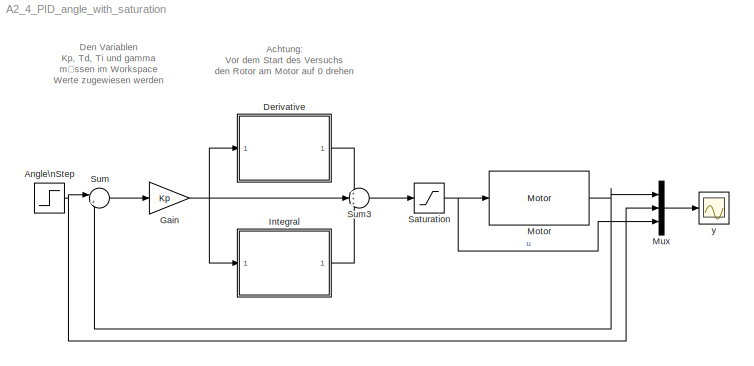
MODEL A2_4_PID_angle_with_saturation
KIND model
BLOCK [Step] Angle\nStep
  After = 2*pi
  SID = 313
  SampleTime = 0.01
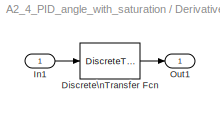
BLOCK [SubSystem] Derivative
  FunctionWithSeparateData = off
  MaskCallbackString = ||||hidecrit|
  MaskDescription = Continuous mask uses c2d to transform parameters onto the Discrete Transfer function block inside.
  MaskDisplay = dpoly(nums,dens)\ntext( 0.5, 1.0, method, 'verticalAlignment','top')
  MaskEnableString = on,on,on,on,on,on
  MaskHideContents = off
  MaskIconFrame = on
  MaskIconOpaque = on
  MaskIconRotate = port
  MaskIconUnits = normalized
  MaskInitialization = st=SampleTime;\nif length(st)>1\n    st=SampleTime(1);\nend\nif(st>0)\n    [numd,dend] = sldiscutil('disctransferfcn',{st,method,Wc,Numerator,Denominator});\nend	\ns = get_param(gcb,'maskvalues');\nnums = s{1};\ndens = s{2};\n%numc = eval(nums);\n%denc = eval(dens);\nsldiscutil('inittfmask', st);\nif(st==0)\nset_param([gcb '/Transfer Fcn'], 'AbsoluteTolerance', AbsTol);\nend
  MaskPortRotate = default
  MaskPromptString = Numerator (enter in s-domain:)|Denominator (enter in s-domain:)|Absolute tolerance:|Sample time:|Method:|Critical Frequency (Hz):
  MaskSelfModifiable = on
  MaskStyleString = edit,edit,edit,edit,popup(zoh|foh|tustin|prewarp|matched),edit
  MaskToolTipString = on,on,on,on,on,on
  MaskTunableValueString = on,on,on,on,on,on
  MaskType = DiscretizedTransferFcn
  MaskValueString = [Td 0]|[gamma*Td 1]|auto|0.01|tustin|1
  MaskVariables = Numerator=@1;Denominator=@2;AbsTol=&3;SampleTime=@4;method=&5;Wc=@6;
  MaskVisibilityString = on,on,on,on,on,off
  MinAlgLoopOccurrences = off
  Opaque = off
  Ports = [1, 1]
  PropExecContextOutsideSubsystem = off
  RTWSystemCode = Auto
  RequestExecContextInheritance = off
  SID = 66
BLOCK [DiscreteTransferFcn] Derivative/Discrete\nTransfer Fcn
  Denominator = dend
  Numerator = numd
  Ports = [1, 1]
  SID = 2
  SampleTime = SampleTime
BLOCK [Inport] Derivative/In1
  IconDisplay = Port number
  SID = 1
BLOCK [Outport] Derivative/Out1
  IconDisplay = Port number
  SID = 3
BLOCK [Gain] Gain
  Gain = Kp
  OutDataTypeMode = Inherit via internal rule
  OutDataTypeStr = Inherit: Inherit via internal rule
  ParamDataTypeStr = Inherit: Inherit via internal rule
  ParameterDataTypeMode = Inherit via internal rule
  SID = 76
  SaturateOnIntegerOverflow = off
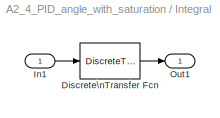
BLOCK [SubSystem] Integral
  FunctionWithSeparateData = off
  MaskCallbackString = ||||hidecrit|
  MaskDescription = Continuous mask uses c2d to transform parameters onto the Discrete Transfer function block inside.
  MaskDisplay = dpoly(nums,dens)\ntext( 0.5, 1.0, method, 'verticalAlignment','top')
  MaskEnableString = on,on,on,on,on,on
  MaskHideContents = off
  MaskIconFrame = on
  MaskIconOpaque = on
  MaskIconRotate = port
  MaskIconUnits = normalized
  MaskInitialization = st=SampleTime;\nif length(st)>1\n    st=SampleTime(1);\nend\nif(st>0)\n    [numd,dend] = sldiscutil('disctransferfcn',{st,method,Wc,Numerator,Denominator});\nend	\ns = get_param(gcb,'maskvalues');\nnums = s{1};\ndens = s{2};\n%numc = eval(nums);\n%denc = eval(dens);\nsldiscutil('inittfmask', st);\nif(st==0)\nset_param([gcb '/Transfer Fcn'], 'AbsoluteTolerance', AbsTol);\nend
  MaskPortRotate = default
  MaskPromptString = Numerator (enter in s-domain:)|Denominator (enter in s-domain:)|Absolute tolerance:|Sample time:|Method:|Critical Frequency (Hz):
  MaskSelfModifiable = on
  MaskStyleString = edit,edit,edit,edit,popup(zoh|foh|tustin|prewarp|matched),edit
  MaskToolTipString = on,on,on,on,on,on
  MaskTunableValueString = on,on,on,on,on,on
  MaskType = DiscretizedTransferFcn
  MaskValueString = [1]|[Ti 0]|auto|0.01|tustin|1
  MaskVariables = Numerator=@1;Denominator=@2;AbsTol=&3;SampleTime=@4;method=&5;Wc=@6;
  MaskVisibilityString = on,on,on,on,on,off
  MinAlgLoopOccurrences = off
  Opaque = off
  Ports = [1, 1]
  PropExecContextOutsideSubsystem = off
  RTWSystemCode = Auto
  RequestExecContextInheritance = off
  SID = 77
BLOCK [DiscreteTransferFcn] Integral/Discrete\nTransfer Fcn
  Denominator = dend
  Numerator = numd
  Ports = [1, 1]
  SID = 2
  SampleTime = SampleTime
BLOCK [Inport] Integral/In1
  IconDisplay = Port number
  SID = 1
BLOCK [Outport] Integral/Out1
  IconDisplay = Port number
  SID = 3
BLOCK [Reference] Motor  REF=DCmotor_library/Motor
  Ports = [1, 1]
  SID = 316
  SourceBlock = DCmotor_library/Motor
  motoridinput = 1
  name_signal = Angle
  ts = 10
BLOCK [Mux] Mux
  DisplayOption = bar
  Inputs = 3
  Ports = [3, 1]
  SID = 319
BLOCK [Saturate] Saturation
  LowerLimit = -7
  SID = 320
  UpperLimit = 7
BLOCK [Sum] Sum
  IconShape = round
  InputSameDT = off
  Inputs = |+-
  OutDataTypeMode = Inherit via internal rule
  OutDataTypeStr = Inherit: Inherit via internal rule
  Ports = [2, 1]
  SID = 86
  SaturateOnIntegerOverflow = off
BLOCK [Sum] Sum3
  IconShape = round
  InputSameDT = off
  Inputs = +++
  OutDataTypeMode = Inherit via internal rule
  OutDataTypeStr = Inherit: Inherit via internal rule
  Ports = [3, 1]
  SID = 88
  SaturateOnIntegerOverflow = off
BLOCK [Scope] y
  DataFormat = StructureWithTime
  Floating = off
  NumInputPorts = 1
  Ports = [1]
  SID = 314
  SampleTime = 0
  YMax = 13
  YMin = -3
ANNOTATION (root): Achtung:\nVor dem Start des Versuchs\nden Rotor am Motor auf 0 drehen
ANNOTATION (root): Den Variablen\nKp, Td, Ti und gamma\nmüssen im Workspace \nWerte zugewiesen werden
NET Angle\nStep:1 -> Mux:2, Sum:1
LINE Derivative/Discrete\nTransfer Fcn:1 -> Derivative/Out1:1
LINE Derivative/In1:1 -> Derivative/Discrete\nTransfer Fcn:1
LINE Derivative:1 -> Sum3:1
NET Gain:1 -> Derivative:1, Integral:1, Sum3:2
LINE Integral/Discrete\nTransfer Fcn:1 -> Integral/Out1:1
LINE Integral/In1:1 -> Integral/Discrete\nTransfer Fcn:1
LINE Integral:1 -> Sum3:3
NET Motor:1 -> Mux:1, Sum:2
LINE Mux:1 -> y:1
NET Saturation:1 -> Motor:1, Mux:3
LINE Sum3:1 -> Saturation:1
LINE Sum:1 -> Gain:1
note: NET lines group one-source signal fan-out (src -> all destinations, sorted); 1:1 wires keep LINE
